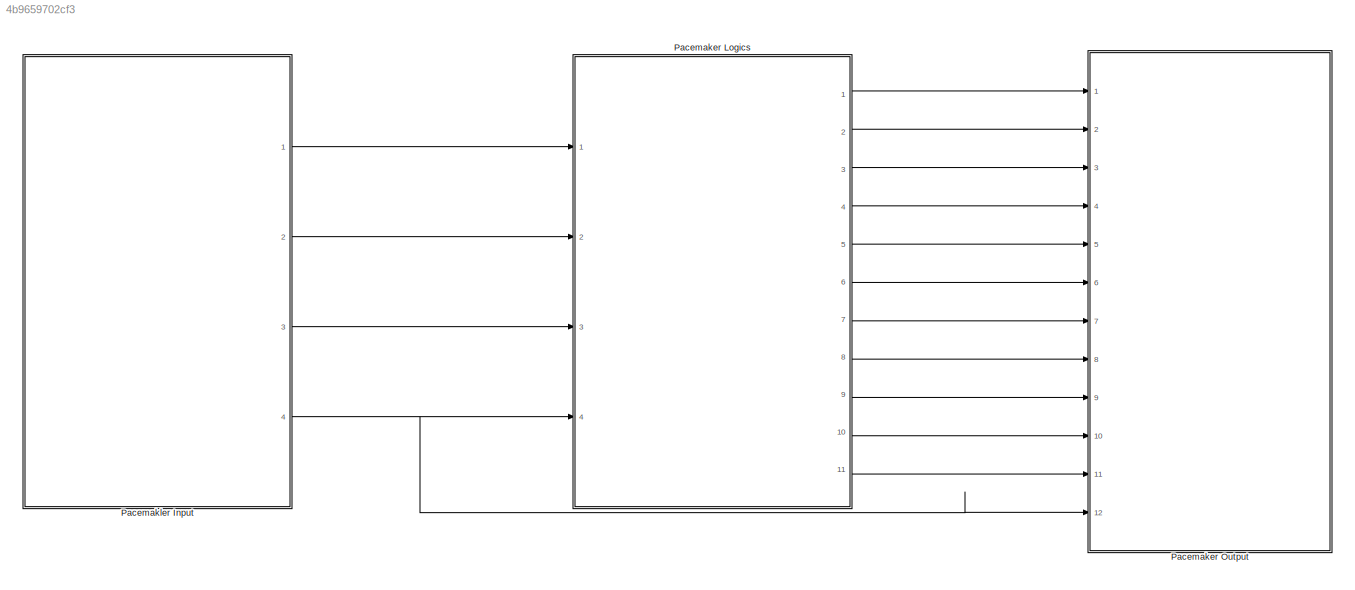
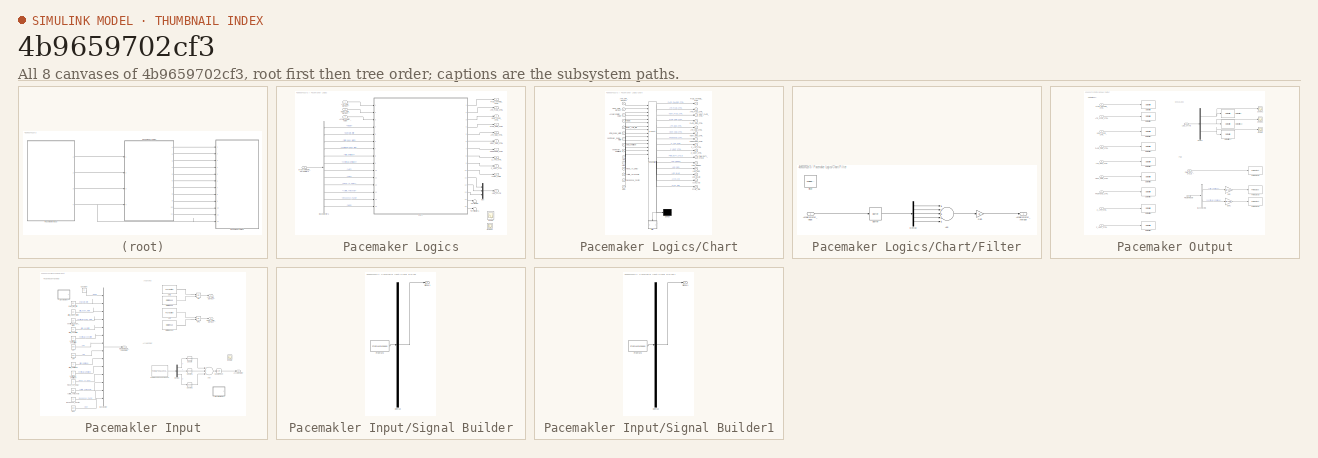
[diagram: thumbnail index - all 8 canvases of the model, root first then tree order]
MODEL slx_4b9659702cf3
KIND model
CONFIG AbsTol = auto
CONFIG EnableMultiTasking = on
CONFIG FixedStep = 1e-3
CONFIG MaxStep = auto
CONFIG MinStep = auto
CONFIG RelTol = 1e-3
CONFIG SampleTimeConstraint = Unconstrained
CONFIG Solver = FixedStepAuto
CONFIG SolverName = FixedStepAuto
CONFIG StartTime = 0.0
CONFIG StopTime = 100
BLOCK [SubSystem] Pacemaker Logics
  Ports = [4, 11]
  RequestExecContextInheritance = off
BLOCK [Outport] Pacemaker Logics/ATRIAL_PWM
  IconDisplay = Port number
  Port = 10
BLOCK [Inport] Pacemaker Logics/ATR_CMR_DETECT
  IconDisplay = Port number
BLOCK [Outport] Pacemaker Logics/ATR_GND_CTRL
  IconDisplay = Port number
  Port = 5
BLOCK [Outport] Pacemaker Logics/ATR_PACE_CTRL
  IconDisplay = Port number
  Port = 2
BLOCK [Inport] Pacemaker Logics/Accelerometer_Value
  IconDisplay = Port number
  Port = 3
BLOCK [BusSelector] Pacemaker Logics/Bus Selector1
  OutputAsBus = off
  OutputSignals = MODE,lower_rate_limit,atrial_pulse_width,ventricular_pulse_width,atrial_amplitude,ventricular_amplitude,ARP,VRP,Fixed_AV_Delay,Activity_Threshold,Response_Factor,MSR
  Ports = [1, 12]
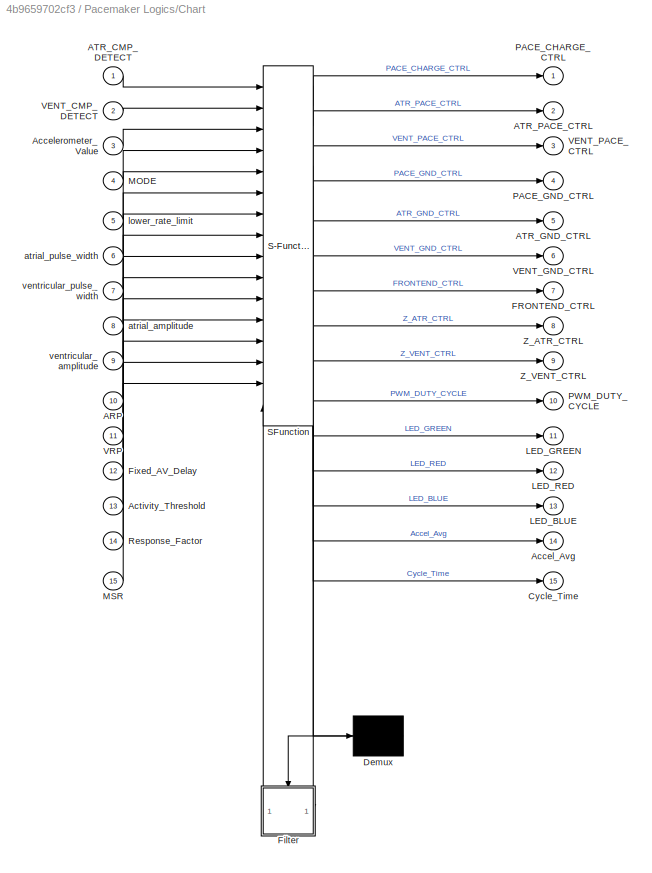
BLOCK [SubSystem] Pacemaker Logics/Chart
  ErrorFcn = Stateflow.Translate.translate
  PermitHierarchicalResolution = ExplicitOnly
  Ports = [15, 15]
  RequestExecContextInheritance = off
  SFBlockType = Chart
  TreatAsAtomicUnit = on
BLOCK [Demux] Pacemaker Logics/Chart/ Demux 
  Outputs = 1
  Ports = [1, 1]
BLOCK [S-Function] Pacemaker Logics/Chart/ SFunction 
  EnableBusSupport = on
  FunctionName = sf_sfun
  PortCounts = [16 17]
  Ports = [16, 17]
  SFcnIsStateOwnerBlock = off
  SFunctionDeploymentMode = off
  Tag = Stateflow S-Function asg1_3k03 3
BLOCK [Inport] Pacemaker Logics/Chart/ARP
  IconDisplay = Port number
  Port = 10
BLOCK [Inport] Pacemaker Logics/Chart/ATR_CMP_DETECT
  IconDisplay = Port number
BLOCK [Outport] Pacemaker Logics/Chart/ATR_GND_CTRL
  IconDisplay = Port number
  Port = 5
BLOCK [Outport] Pacemaker Logics/Chart/ATR_PACE_CTRL
  IconDisplay = Port number
  Port = 2
BLOCK [Outport] Pacemaker Logics/Chart/Accel_Avg
  IconDisplay = Port number
  Port = 14
BLOCK [Inport] Pacemaker Logics/Chart/Accelerometer_Value
  IconDisplay = Port number
  Port = 3
BLOCK [Inport] Pacemaker Logics/Chart/Activity_Threshold
  IconDisplay = Port number
  Port = 13
BLOCK [Outport] Pacemaker Logics/Chart/Cycle_Time
  IconDisplay = Port number
  Port = 15
BLOCK [Outport] Pacemaker Logics/Chart/FRONTEND_CTRL
  IconDisplay = Port number
  Port = 7
BLOCK [SubSystem] Pacemaker Logics/Chart/Filter
  Ports = [1, 1, 0, 1]
  PreDeleteFcn = Stateflow.SLINSF.SimulinkMan.removePreDeleteFcn
  RequestExecContextInheritance = off
  UndoDeleteFcn = Stateflow.SLINSF.SimulinkMan.restorePreDeleteFcn
BLOCK [Outport] Pacemaker Logics/Chart/Filter/Accelerometer_Average
  IconDisplay = Port number
BLOCK [Inport] Pacemaker Logics/Chart/Filter/Accelerometer_Value
  IconDisplay = Port number
  OutDataTypeStr = double
  PortDimensions = 1
  SignalType = real
  VarSizeSig = No
BLOCK [Sum] Pacemaker Logics/Chart/Filter/Add
  InputSameDT = off
  Inputs = +++++
  OutDataTypeStr = Inherit: Inherit via internal rule
  Ports = [5, 1]
  SaturateOnIntegerOverflow = off
BLOCK [Buffer] Pacemaker Logics/Chart/Filter/Buffer
  N = 5
  OutputFrames = off
  V = 4
  ic = 1
BLOCK [Demux] Pacemaker Logics/Chart/Filter/Demux
  DisplayOption = bar
  Outputs = 5
  Ports = [1, 5]
BLOCK [TriggerPort] Pacemaker Logics/Chart/Filter/Filter 
  CopyFcn = Stateflow.SLINSF.SimulinkMan.removeBlockPreDeleteFcn
  Ports = []
  PreDeleteFcn = Stateflow.SLINSF.SimulinkMan.unsafePredeleteFcn
  StatesWhenEnabling = held
  TriggerType = function-call
  VariantControl = (inherit)
BLOCK [Gain] Pacemaker Logics/Chart/Filter/Gain
  Gain = 1/5
  OutDataTypeStr = Inherit: Inherit via internal rule
  ParamDataTypeStr = Inherit: Inherit via internal rule
  SaturateOnIntegerOverflow = off
BLOCK [Inport] Pacemaker Logics/Chart/Fixed_AV_Delay
  IconDisplay = Port number
  Port = 12
BLOCK [Outport] Pacemaker Logics/Chart/LED_BLUE
  IconDisplay = Port number
  Port = 13
BLOCK [Outport] Pacemaker Logics/Chart/LED_GREEN
  IconDisplay = Port number
  Port = 11
BLOCK [Outport] Pacemaker Logics/Chart/LED_RED
  IconDisplay = Port number
  Port = 12
BLOCK [Inport] Pacemaker Logics/Chart/MODE
  IconDisplay = Port number
  Port = 4
BLOCK [Inport] Pacemaker Logics/Chart/MSR
  IconDisplay = Port number
  Port = 15
BLOCK [Outport] Pacemaker Logics/Chart/PACE_CHARGE_CTRL
  IconDisplay = Port number
BLOCK [Outport] Pacemaker Logics/Chart/PACE_GND_CTRL
  IconDisplay = Port number
  Port = 4
BLOCK [Outport] Pacemaker Logics/Chart/PWM_DUTY_CYCLE
  IconDisplay = Port number
  Port = 10
BLOCK [Inport] Pacemaker Logics/Chart/Response_Factor
  IconDisplay = Port number
  Port = 14
BLOCK [Inport] Pacemaker Logics/Chart/VENT_CMP_DETECT
  IconDisplay = Port number
  Port = 2
BLOCK [Outport] Pacemaker Logics/Chart/VENT_GND_CTRL
  IconDisplay = Port number
  Port = 6
BLOCK [Outport] Pacemaker Logics/Chart/VENT_PACE_CTRL
  IconDisplay = Port number
  Port = 3
BLOCK [Inport] Pacemaker Logics/Chart/VRP
  IconDisplay = Port number
  Port = 11
BLOCK [Outport] Pacemaker Logics/Chart/Z_ATR_CTRL
  IconDisplay = Port number
  Port = 8
BLOCK [Outport] Pacemaker Logics/Chart/Z_VENT_CTRL
  IconDisplay = Port number
  Port = 9
BLOCK [Inport] Pacemaker Logics/Chart/atrial_amplitude
  IconDisplay = Port number
  Port = 8
BLOCK [Inport] Pacemaker Logics/Chart/atrial_pulse_width
  IconDisplay = Port number
  Port = 6
BLOCK [Inport] Pacemaker Logics/Chart/lower_rate_limit
  IconDisplay = Port number
  Port = 5
BLOCK [Inport] Pacemaker Logics/Chart/ventricular_amplitude
  IconDisplay = Port number
  Port = 9
BLOCK [Inport] Pacemaker Logics/Chart/ventricular_pulse_width
  IconDisplay = Port number
  Port = 7
BLOCK [Outport] Pacemaker Logics/FRONTEND_CTRL
  IconDisplay = Port number
  Port = 7
BLOCK [Outport] Pacemaker Logics/LED_STATE
  IconDisplay = Port number
  Port = 11
BLOCK [Mux] Pacemaker Logics/Mux
  DisplayOption = bar
  Inputs = 3
  Ports = [3, 1]
BLOCK [Outport] Pacemaker Logics/PACE_CHARGE_CTRL
  IconDisplay = Port number
BLOCK [Outport] Pacemaker Logics/PACE_GND_CTRL
  IconDisplay = Port number
  Port = 4
BLOCK [Scope] Pacemaker Logics/Scope
  Commented = on
  Floating = off
  NumInputPorts = 2
  Ports = [2]
  ScopeSpecificationString = Simulink.scopes.TimeScopeBlockCfg('CurrentConfiguration', extmgr.ConfigurationSet(extmgr.Configuration('Core','General UI',true),extmgr.Configuration('Core','Source UI',true),extmgr.Configuration('Sources','WiredSimulink',true,'DataLoggingVariableName','ScopeData3'),extmgr.Configuration('Visuals','Time Domain',true,'SerializedDisplays',{struct('MinYLimReal','-0.175','MaxYLimReal','1.575','YLabelRe...<+1538ch>
BLOCK [Scope] Pacemaker Logics/Scope1
  Commented = on
  Floating = off
  NumInputPorts = 1
  Ports = [1]
  ScopeSpecificationString = Simulink.scopes.TimeScopeBlockCfg('CurrentConfiguration', extmgr.ConfigurationSet(extmgr.Configuration('Core','General UI',true),extmgr.Configuration('Core','Source UI',true),extmgr.Configuration('Sources','WiredSimulink',true,'DataLoggingVariableName','ScopeData1'),extmgr.Configuration('Visuals','Time Domain',true,'SerializedDisplays',{struct('MinYLimReal','900.00000','MaxYLimReal','1100.00000','...<+1445ch>
BLOCK [Terminator] Pacemaker Logics/Terminator
BLOCK [Terminator] Pacemaker Logics/Terminator1
BLOCK [Inport] Pacemaker Logics/VENT_CMP_DETECT
  IconDisplay = Port number
  Port = 2
BLOCK [Outport] Pacemaker Logics/VENT_GND_CTRL
  IconDisplay = Port number
  Port = 6
BLOCK [Outport] Pacemaker Logics/VENT_PACE_CTRL
  IconDisplay = Port number
  Port = 3
BLOCK [Outport] Pacemaker Logics/Z_ATR_CTRL
  IconDisplay = Port number
  Port = 8
BLOCK [Outport] Pacemaker Logics/Z_VENT_CTRL
  IconDisplay = Port number
  Port = 9
BLOCK [Inport] Pacemaker Logics/programmable_parameters
  IconDisplay = Port number
  Port = 4
BLOCK [SubSystem] Pacemaker Output
  Ports = [12]
  RequestExecContextInheritance = off
BLOCK [Inport] Pacemaker Output/ATR_GND_CTRL
  IconDisplay = Port number
  Port = 5
BLOCK [Inport] Pacemaker Output/ATR_PACE_CTRL
  IconDisplay = Port number
  Port = 2
BLOCK [BusSelector] Pacemaker Output/Bus Selector1
  OutputAsBus = off
  OutputSignals = atrial_amplitude,ventricular_amplitude
  Ports = [1, 2]
BLOCK [Demux] Pacemaker Output/Demux
  DisplayOption = bar
  Outputs = 3
  Ports = [1, 3]
BLOCK [Reference] Pacemaker Output/Digital Write  REF=frdmk64flib/Digital Write
  Ports = [1]
  SourceBlock = frdmk64flib/Digital Write
  SourceProductBaseCode = EC_FRDM_K64F
  SourceProductName = Simulink Coder Support Package for NXP FRDM-K64F Board
  SourceType = freedomk64f.DigitalWrite
BLOCK [Reference] Pacemaker Output/Digital Write1  REF=frdmk64flib/Digital Write
  Ports = [1]
  SourceBlock = frdmk64flib/Digital Write
  SourceProductBaseCode = EC_FRDM_K64F
  SourceProductName = Simulink Coder Support Package for NXP FRDM-K64F Board
  SourceType = freedomk64f.DigitalWrite
BLOCK [Reference] Pacemaker Output/Digital Write10  REF=frdmk64flib/Digital Write
  Ports = [1]
  SourceBlock = frdmk64flib/Digital Write
  SourceProductBaseCode = EC_FRDM_K64F
  SourceProductName = Simulink Coder Support Package for NXP FRDM-K64F Board
  SourceType = freedomk64f.DigitalWrite
BLOCK [Reference] Pacemaker Output/Digital Write11  REF=frdmk64flib/Digital Write
  Ports = [1]
  SourceBlock = frdmk64flib/Digital Write
  SourceProductBaseCode = EC_FRDM_K64F
  SourceProductName = Simulink Coder Support Package for NXP FRDM-K64F Board
  SourceType = freedomk64f.DigitalWrite
BLOCK [Reference] Pacemaker Output/Digital Write2  REF=frdmk64flib/Digital Write
  Ports = [1]
  SourceBlock = frdmk64flib/Digital Write
  SourceProductBaseCode = EC_FRDM_K64F
  SourceProductName = Simulink Coder Support Package for NXP FRDM-K64F Board
  SourceType = freedomk64f.DigitalWrite
BLOCK [Reference] Pacemaker Output/Digital Write3  REF=frdmk64flib/Digital Write
  Ports = [1]
  SourceBlock = frdmk64flib/Digital Write
  SourceProductBaseCode = EC_FRDM_K64F
  SourceProductName = Simulink Coder Support Package for NXP FRDM-K64F Board
  SourceType = freedomk64f.DigitalWrite
BLOCK [Reference] Pacemaker Output/Digital Write4  REF=frdmk64flib/Digital Write
  Ports = [1]
  SourceBlock = frdmk64flib/Digital Write
  SourceProductBaseCode = EC_FRDM_K64F
  SourceProductName = Simulink Coder Support Package for NXP FRDM-K64F Board
  SourceType = freedomk64f.DigitalWrite
BLOCK [Reference] Pacemaker Output/Digital Write5  REF=frdmk64flib/Digital Write
  Ports = [1]
  SourceBlock = frdmk64flib/Digital Write
  SourceProductBaseCode = EC_FRDM_K64F
  SourceProductName = Simulink Coder Support Package for NXP FRDM-K64F Board
  SourceType = freedomk64f.DigitalWrite
BLOCK [Reference] Pacemaker Output/Digital Write6  REF=frdmk64flib/Digital Write
  Ports = [1]
  SourceBlock = frdmk64flib/Digital Write
  SourceProductBaseCode = EC_FRDM_K64F
  SourceProductName = Simulink Coder Support Package for NXP FRDM-K64F Board
  SourceType = freedomk64f.DigitalWrite
BLOCK [Reference] Pacemaker Output/Digital Write7  REF=frdmk64flib/Digital Write
  Ports = [1]
  SourceBlock = frdmk64flib/Digital Write
  SourceProductBaseCode = EC_FRDM_K64F
  SourceProductName = Simulink Coder Support Package for NXP FRDM-K64F Board
  SourceType = freedomk64f.DigitalWrite
BLOCK [Reference] Pacemaker Output/Digital Write8  REF=frdmk64flib/Digital Write
  Ports = [1]
  SourceBlock = frdmk64flib/Digital Write
  SourceProductBaseCode = EC_FRDM_K64F
  SourceProductName = Simulink Coder Support Package for NXP FRDM-K64F Board
  SourceType = freedomk64f.DigitalWrite
BLOCK [Reference] Pacemaker Output/Digital Write9  REF=frdmk64flib/Digital Write
  Ports = [1]
  SourceBlock = frdmk64flib/Digital Write
  SourceProductBaseCode = EC_FRDM_K64F
  SourceProductName = Simulink Coder Support Package for NXP FRDM-K64F Board
  SourceType = freedomk64f.DigitalWrite
BLOCK [Inport] Pacemaker Output/FRONTEND_CTRL
  IconDisplay = Port number
  Port = 7
BLOCK [Gain] Pacemaker Output/Gain
  Gain = 1/5*100
  OutDataTypeStr = Inherit: Inherit via internal rule
  ParamDataTypeStr = Inherit: Inherit via internal rule
  SaturateOnIntegerOverflow = off
BLOCK [Gain] Pacemaker Output/Gain1
  Gain = 1/5*100
  OutDataTypeStr = Inherit: Inherit via internal rule
  ParamDataTypeStr = Inherit: Inherit via internal rule
  SaturateOnIntegerOverflow = off
BLOCK [Inport] Pacemaker Output/LED_STATE
  IconDisplay = Port number
  Port = 11
BLOCK [Inport] Pacemaker Output/PACE_CHARGE_CTRL
  IconDisplay = Port number
BLOCK [Inport] Pacemaker Output/PACE_GND_CTRL
  IconDisplay = Port number
  Port = 4
BLOCK [Reference] Pacemaker Output/PWM Output2  REF=frdmk64flib/PWM Output
  Ports = [1]
  SourceBlock = frdmk64flib/PWM Output
  SourceProductBaseCode = EC_FRDM_K64F
  SourceProductName = Simulink Coder Support Package for NXP FRDM-K64F Board
  SourceType = freedomk64f.PWMOutput
BLOCK [Reference] Pacemaker Output/PWM Output3  REF=frdmk64flib/PWM Output
  Ports = [1]
  SourceBlock = frdmk64flib/PWM Output
  SourceProductBaseCode = EC_FRDM_K64F
  SourceProductName = Simulink Coder Support Package for NXP FRDM-K64F Board
  SourceType = freedomk64f.PWMOutput
BLOCK [Reference] Pacemaker Output/PWM Output4  REF=frdmk64flib/PWM Output
  Ports = [1]
  SourceBlock = frdmk64flib/PWM Output
  SourceProductBaseCode = EC_FRDM_K64F
  SourceProductName = Simulink Coder Support Package for NXP FRDM-K64F Board
  SourceType = freedomk64f.PWMOutput
BLOCK [Inport] Pacemaker Output/PWM_DUTY_CYCLE
  IconDisplay = Port number
  Port = 10
BLOCK [Inport] Pacemaker Output/Programmable 
  IconDisplay = Port number
  Port = 12
BLOCK [Scope] Pacemaker Output/Scope
  Floating = off
  NumInputPorts = 1
  Ports = [1]
  ScopeSpecificationString = Simulink.scopes.TimeScopeBlockCfg('CurrentConfiguration', extmgr.ConfigurationSet(extmgr.Configuration('Core','General UI',true),extmgr.Configuration('Core','Source UI',true),extmgr.Configuration('Sources','WiredSimulink',true,'DataLoggingVariableName','ScopeData1'),extmgr.Configuration('Visuals','Time Domain',true,'SerializedDisplays',{struct('MinYLimReal','-0.125','MaxYLimReal','1.125','YLabelRe...<+1468ch>
BLOCK [Scope] Pacemaker Output/Scope1
  Floating = off
  NumInputPorts = 1
  Ports = [1]
  ScopeSpecificationString = Simulink.scopes.TimeScopeBlockCfg('CurrentConfiguration', extmgr.ConfigurationSet(extmgr.Configuration('Core','General UI',true),extmgr.Configuration('Core','Source UI',true),extmgr.Configuration('Sources','WiredSimulink',true,'DataLoggingVariableName','ScopeData1'),extmgr.Configuration('Visuals','Time Domain',true,'SerializedDisplays',{struct('MinYLimReal','-0.125','MaxYLimReal','1.125','YLabelRe...<+1467ch>
BLOCK [Scope] Pacemaker Output/Scope2
  Floating = off
  NumInputPorts = 1
  Ports = [1]
  ScopeSpecificationString = Simulink.scopes.TimeScopeBlockCfg('CurrentConfiguration', extmgr.ConfigurationSet(extmgr.Configuration('Core','General UI',true),extmgr.Configuration('Core','Source UI',true),extmgr.Configuration('Sources','WiredSimulink',true,'DataLoggingVariableName','ScopeData2'),extmgr.Configuration('Visuals','Time Domain',true,'SerializedDisplays',{struct('MinYLimReal','-0.01167','MaxYLimReal','0.0277','YLabe...<+1811ch>
BLOCK [Inport] Pacemaker Output/VENT_GND_CTRL
  IconDisplay = Port number
  Port = 6
BLOCK [Inport] Pacemaker Output/VENT_PACE_CTRL
  IconDisplay = Port number
  Port = 3
BLOCK [Inport] Pacemaker Output/Z_ATR_CTRL
  IconDisplay = Port number
  Port = 8
BLOCK [Inport] Pacemaker Output/Z_VENT_CTRL
  IconDisplay = Port number
  Port = 9
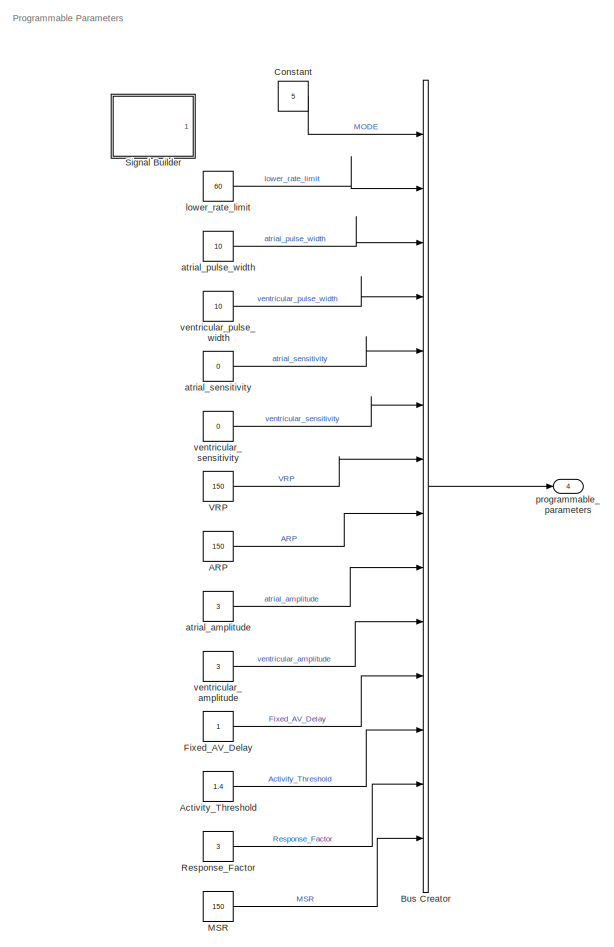
[diagram: Pacemakler Input - part 1/2, left side, full height]
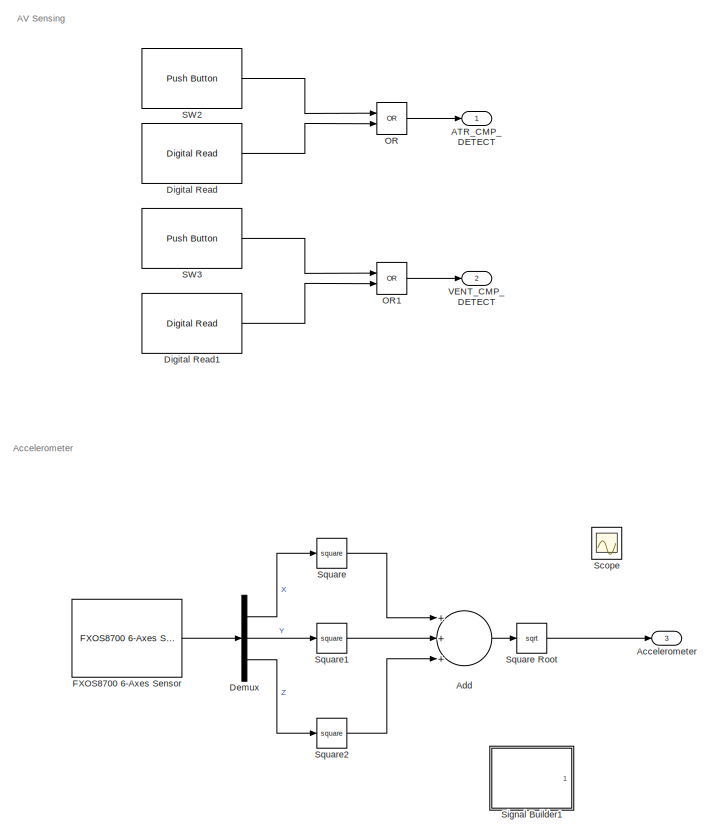
[diagram: Pacemakler Input - part 2/2, right side, full height]
BLOCK [SubSystem] Pacemakler Input
  Ports = [0, 4]
  RequestExecContextInheritance = off
BLOCK [Constant] Pacemakler Input/ARP
  Value = 150
BLOCK [Outport] Pacemakler Input/ATR_CMP_DETECT
  IconDisplay = Port number
BLOCK [Outport] Pacemakler Input/Accelerometer 
  IconDisplay = Port number
  Port = 3
BLOCK [Constant] Pacemakler Input/Activity_Threshold
  Value = 1.4
BLOCK [Sum] Pacemakler Input/Add
  InputSameDT = off
  Inputs = +++
  OutDataTypeStr = Inherit: Inherit via internal rule
  Ports = [3, 1]
  SaturateOnIntegerOverflow = off
BLOCK [BusCreator] Pacemakler Input/Bus Creator
  DisplayOption = bar
  InheritFromInputs = on
  Inputs = 14
  Ports = [14, 1]
BLOCK [Constant] Pacemakler Input/Constant
  Value = 5
BLOCK [Demux] Pacemakler Input/Demux
  DisplayOption = bar
  Outputs = 3
  Ports = [1, 3]
BLOCK [Reference] Pacemakler Input/Digital Read  REF=frdmk64flib/Digital Read
  Ports = [0, 1]
  SourceBlock = frdmk64flib/Digital Read
  SourceProductBaseCode = EC_FRDM_K64F
  SourceProductName = Simulink Coder Support Package for NXP FRDM-K64F Board
  SourceType = freedomk64f.DigitalRead
BLOCK [Reference] Pacemakler Input/Digital Read1  REF=frdmk64flib/Digital Read
  Ports = [0, 1]
  SourceBlock = frdmk64flib/Digital Read
  SourceProductBaseCode = EC_FRDM_K64F
  SourceProductName = Simulink Coder Support Package for NXP FRDM-K64F Board
  SourceType = freedomk64f.DigitalRead
BLOCK [Reference] Pacemakler Input/FXOS8700 6-Axes Sensor  REF=frdmk64flib/FXOS8700 6-Axes Sensor
  Ports = [0, 1]
  SourceBlock = frdmk64flib/FXOS8700 6-Axes Sensor
  SourceProductBaseCode = EC_FRDM_K64F
  SourceProductName = Simulink Coder Support Package for NXP FRDM-K64F Board
  SourceType = freedomk64f.fxos8700
BLOCK [Constant] Pacemakler Input/Fixed_AV_Delay
BLOCK [Constant] Pacemakler Input/MSR 
  Value = 150
BLOCK [Logic] Pacemakler Input/OR
  AllPortsSameDT = off
  IconShape = distinctive
  Operator = OR
  OutDataTypeStr = boolean
  Ports = [2, 1]
BLOCK [Logic] Pacemakler Input/OR1
  AllPortsSameDT = off
  IconShape = distinctive
  Operator = OR
  OutDataTypeStr = boolean
  Ports = [2, 1]
BLOCK [Constant] Pacemakler Input/Response_Factor
  Value = 3
BLOCK [Reference] Pacemakler Input/SW2  REF=frdmk64flib/Push Button
  Ports = [0, 1]
  SourceBlock = frdmk64flib/Push Button
  SourceProductBaseCode = EC_FRDM_K64F
  SourceProductName = Simulink Coder Support Package for NXP FRDM-K64F Board
  SourceType = freedomk64f.PushButton
BLOCK [Reference] Pacemakler Input/SW3  REF=frdmk64flib/Push Button
  Ports = [0, 1]
  SourceBlock = frdmk64flib/Push Button
  SourceProductBaseCode = EC_FRDM_K64F
  SourceProductName = Simulink Coder Support Package for NXP FRDM-K64F Board
  SourceType = freedomk64f.PushButton
BLOCK [Scope] Pacemakler Input/Scope
  Commented = on
  Floating = off
  NumInputPorts = 1
  Ports = [1]
  ScopeSpecificationString = Simulink.scopes.TimeScopeBlockCfg('CurrentConfiguration', extmgr.ConfigurationSet(extmgr.Configuration('Core','General UI',true),extmgr.Configuration('Core','Source UI',true),extmgr.Configuration('Sources','WiredSimulink',true),extmgr.Configuration('Visuals','Time Domain',true,'SerializedDisplays',{struct('MinYLimReal','-0.47168','MaxYLimReal','6.13851','YLabelReal','','MinYLimMag','0.00000','MaxY...<+1429ch>
BLOCK [SubSystem] Pacemakler Input/Signal Builder
  ClipboardFcn = sigbuilder_block('clipboard');
  CloseFcn = sigbuilder_block('close');
  Commented = on
  ContinueFcn = sigbuilder_block('continue');
  CopyFcn = sigbuilder_block('copy');
  DeleteFcn = sigbuilder_block('delete');
  LoadFcn = sigbuilder_block('load');
  MaskHideContents = on
  ModelCloseFcn = sigbuilder_block('modelClose');
  NameChangeFcn = sigbuilder_block('namechange');
  OpenFcn = sigbuilder_block('open',[347.5 209 550.5 400 ]);
  PauseFcn = sigbuilder_block('pause');
  Ports = [0, 1]
  PreSaveFcn = sigbuilder_block('preSave');
  RequestExecContextInheritance = off
  StartFcn = sigbuilder_block('start');
  StopFcn = sigbuilder_block('stop');
  Tag = STV Subsys
BLOCK [Demux] Pacemakler Input/Signal Builder/Demux
  Outputs = 1
  Ports = [1, 1]
  Tag = STV Demux
BLOCK [FromWorkspace] Pacemakler Input/Signal Builder/FromWs
  SampleTime = 0
  Tag = STV FromWs
  VariableName = tuvar
  ZeroCross = on
BLOCK [Outport] Pacemakler Input/Signal Builder/Signal 1
  IconDisplay = Port number
  Tag = STV Outport
BLOCK [SubSystem] Pacemakler Input/Signal Builder1
  ClipboardFcn = sigbuilder_block('clipboard');
  CloseFcn = sigbuilder_block('close');
  Commented = on
  ContinueFcn = sigbuilder_block('continue');
  CopyFcn = sigbuilder_block('copy');
  DeleteFcn = sigbuilder_block('delete');
  LoadFcn = sigbuilder_block('load');
  MaskHideContents = on
  ModelCloseFcn = sigbuilder_block('modelClose');
  NameChangeFcn = sigbuilder_block('namechange');
  OpenFcn = sigbuilder_block('open',[347.5 209 550.5 400 ]);
  PauseFcn = sigbuilder_block('pause');
  Ports = [0, 1]
  PreSaveFcn = sigbuilder_block('preSave');
  RequestExecContextInheritance = off
  StartFcn = sigbuilder_block('start');
  StopFcn = sigbuilder_block('stop');
  Tag = STV Subsys
BLOCK [Demux] Pacemakler Input/Signal Builder1/Demux
  Outputs = 1
  Ports = [1, 1]
  Tag = STV Demux
BLOCK [FromWorkspace] Pacemakler Input/Signal Builder1/FromWs
  SampleTime = 0
  Tag = STV FromWs
  VariableName = tuvar
  ZeroCross = on
BLOCK [Outport] Pacemakler Input/Signal Builder1/Signal 1
  IconDisplay = Port number
  Tag = STV Outport
BLOCK [Math] Pacemakler Input/Square
  Operator = square
  Ports = [1, 1]
BLOCK [Sqrt] Pacemakler Input/Square Root
BLOCK [Math] Pacemakler Input/Square1
  Operator = square
  Ports = [1, 1]
BLOCK [Math] Pacemakler Input/Square2
  Operator = square
  Ports = [1, 1]
BLOCK [Outport] Pacemakler Input/VENT_CMP_DETECT
  IconDisplay = Port number
  Port = 2
BLOCK [Constant] Pacemakler Input/VRP
  Value = 150
BLOCK [Constant] Pacemakler Input/atrial_amplitude
  Value = 3
BLOCK [Constant] Pacemakler Input/atrial_pulse_width
  Value = 10
BLOCK [Constant] Pacemakler Input/atrial_sensitivity
  Value = 0
BLOCK [Constant] Pacemakler Input/lower_rate_limit
  Value = 60
BLOCK [Outport] Pacemakler Input/programmable_parameters
  IconDisplay = Port number
  Port = 4
BLOCK [Constant] Pacemakler Input/ventricular_amplitude
  Value = 3
BLOCK [Constant] Pacemakler Input/ventricular_pulse_width
  Value = 10
BLOCK [Constant] Pacemakler Input/ventricular_sensitivity
  Value = 0
ANNOTATION Pacemaker Output: Debug LEDs
ANNOTATION Pacemaker Output: Digital Write (Pins)
ANNOTATION Pacemaker Output: PWM
ANNOTATION Pacemakler Input: AV Sensing
ANNOTATION Pacemakler Input: Accelerometer
ANNOTATION Pacemakler Input: Programmable Parameters
LINE Pacemaker Logics/ATR_CMR_DETECT:1 -> Pacemaker Logics/Chart:1
LINE Pacemaker Logics/Accelerometer_Value:1 -> Pacemaker Logics/Chart:3
LINE Pacemaker Logics/Bus Selector1:1 -> Pacemaker Logics/Chart:4
LINE Pacemaker Logics/Bus Selector1:10 -> Pacemaker Logics/Chart:13
LINE Pacemaker Logics/Bus Selector1:11 -> Pacemaker Logics/Chart:14
LINE Pacemaker Logics/Bus Selector1:12 -> Pacemaker Logics/Chart:15
LINE Pacemaker Logics/Bus Selector1:2 -> Pacemaker Logics/Chart:5
LINE Pacemaker Logics/Bus Selector1:3 -> Pacemaker Logics/Chart:6
LINE Pacemaker Logics/Bus Selector1:4 -> Pacemaker Logics/Chart:7
LINE Pacemaker Logics/Bus Selector1:5 -> Pacemaker Logics/Chart:8
LINE Pacemaker Logics/Bus Selector1:6 -> Pacemaker Logics/Chart:9
LINE Pacemaker Logics/Bus Selector1:7 -> Pacemaker Logics/Chart:10
LINE Pacemaker Logics/Bus Selector1:8 -> Pacemaker Logics/Chart:11
LINE Pacemaker Logics/Bus Selector1:9 -> Pacemaker Logics/Chart:12
LINE Pacemaker Logics/Chart:1 -> Pacemaker Logics/PACE_CHARGE_CTRL:1
LINE Pacemaker Logics/Chart:10 -> Pacemaker Logics/ATRIAL_PWM:1
LINE Pacemaker Logics/Chart:11 -> Pacemaker Logics/Mux:1
LINE Pacemaker Logics/Chart:12 -> Pacemaker Logics/Mux:2
LINE Pacemaker Logics/Chart:13 -> Pacemaker Logics/Mux:3
LINE Pacemaker Logics/Chart:14 -> Pacemaker Logics/Terminator:1
LINE Pacemaker Logics/Chart:15 -> Pacemaker Logics/Terminator1:1
LINE Pacemaker Logics/Chart:2 -> Pacemaker Logics/ATR_PACE_CTRL:1
LINE Pacemaker Logics/Chart:3 -> Pacemaker Logics/VENT_PACE_CTRL:1
LINE Pacemaker Logics/Chart:4 -> Pacemaker Logics/PACE_GND_CTRL:1
LINE Pacemaker Logics/Chart:5 -> Pacemaker Logics/ATR_GND_CTRL:1
LINE Pacemaker Logics/Chart:6 -> Pacemaker Logics/VENT_GND_CTRL:1
LINE Pacemaker Logics/Chart:7 -> Pacemaker Logics/FRONTEND_CTRL:1
LINE Pacemaker Logics/Chart:8 -> Pacemaker Logics/Z_ATR_CTRL:1
LINE Pacemaker Logics/Chart:9 -> Pacemaker Logics/Z_VENT_CTRL:1
LINE Pacemaker Logics/Mux:1 -> Pacemaker Logics/LED_STATE:1
LINE Pacemaker Logics/VENT_CMP_DETECT:1 -> Pacemaker Logics/Chart:2
LINE Pacemaker Logics/programmable_parameters:1 -> Pacemaker Logics/Bus Selector1:1
LINE Pacemaker Logics:1 -> Pacemaker Output:1
LINE Pacemaker Logics:10 -> Pacemaker Output:10
LINE Pacemaker Logics:11 -> Pacemaker Output:11
LINE Pacemaker Logics:2 -> Pacemaker Output:2
LINE Pacemaker Logics:3 -> Pacemaker Output:3
LINE Pacemaker Logics:4 -> Pacemaker Output:4
LINE Pacemaker Logics:5 -> Pacemaker Output:5
LINE Pacemaker Logics:6 -> Pacemaker Output:6
LINE Pacemaker Logics:7 -> Pacemaker Output:7
LINE Pacemaker Logics:8 -> Pacemaker Output:8
LINE Pacemaker Logics:9 -> Pacemaker Output:9
LINE Pacemaker Output/ATR_GND_CTRL:1 -> Pacemaker Output/Digital Write4:1
LINE Pacemaker Output/ATR_PACE_CTRL:1 -> Pacemaker Output/Digital Write1:1
LINE Pacemaker Output/Bus Selector1:1 -> Pacemaker Output/Gain:1
LINE Pacemaker Output/Bus Selector1:2 -> Pacemaker Output/Gain1:1
NET Pacemaker Output/Demux:1 -> Pacemaker Output/Digital Write7:1, Pacemaker Output/Scope2:1
NET Pacemaker Output/Demux:2 -> Pacemaker Output/Digital Write10:1, Pacemaker Output/Scope1:1
NET Pacemaker Output/Demux:3 -> Pacemaker Output/Digital Write11:1, Pacemaker Output/Scope:1
LINE Pacemaker Output/FRONTEND_CTRL:1 -> Pacemaker Output/Digital Write6:1
LINE Pacemaker Output/Gain1:1 -> Pacemaker Output/PWM Output4:1
LINE Pacemaker Output/Gain:1 -> Pacemaker Output/PWM Output3:1
LINE Pacemaker Output/LED_STATE:1 -> Pacemaker Output/Demux:1
LINE Pacemaker Output/PACE_CHARGE_CTRL:1 -> Pacemaker Output/Digital Write:1
LINE Pacemaker Output/PACE_GND_CTRL:1 -> Pacemaker Output/Digital Write3:1
LINE Pacemaker Output/PWM_DUTY_CYCLE:1 -> Pacemaker Output/PWM Output2:1
LINE Pacemaker Output/Programmable :1 -> Pacemaker Output/Bus Selector1:1
LINE Pacemaker Output/VENT_GND_CTRL:1 -> Pacemaker Output/Digital Write5:1
LINE Pacemaker Output/VENT_PACE_CTRL:1 -> Pacemaker Output/Digital Write2:1
LINE Pacemaker Output/Z_ATR_CTRL:1 -> Pacemaker Output/Digital Write8:1
LINE Pacemaker Output/Z_VENT_CTRL:1 -> Pacemaker Output/Digital Write9:1
LINE Pacemakler Input/ARP:1 -> Pacemakler Input/Bus Creator:8
LINE Pacemakler Input/Activity_Threshold:1 -> Pacemakler Input/Bus Creator:12
LINE Pacemakler Input/Add:1 -> Pacemakler Input/Square Root:1
LINE Pacemakler Input/Bus Creator:1 -> Pacemakler Input/programmable_parameters:1
LINE Pacemakler Input/Constant:1 -> Pacemakler Input/Bus Creator:1
LINE Pacemakler Input/Demux:1 -> Pacemakler Input/Square:1
LINE Pacemakler Input/Demux:2 -> Pacemakler Input/Square1:1
LINE Pacemakler Input/Demux:3 -> Pacemakler Input/Square2:1
LINE Pacemakler Input/Digital Read1:1 -> Pacemakler Input/OR1:2
LINE Pacemakler Input/Digital Read:1 -> Pacemakler Input/OR:2
LINE Pacemakler Input/FXOS8700 6-Axes Sensor:1 -> Pacemakler Input/Demux:1
LINE Pacemakler Input/Fixed_AV_Delay:1 -> Pacemakler Input/Bus Creator:11
LINE Pacemakler Input/MSR :1 -> Pacemakler Input/Bus Creator:14
LINE Pacemakler Input/OR1:1 -> Pacemakler Input/VENT_CMP_DETECT:1
LINE Pacemakler Input/OR:1 -> Pacemakler Input/ATR_CMP_DETECT:1
LINE Pacemakler Input/Response_Factor:1 -> Pacemakler Input/Bus Creator:13
LINE Pacemakler Input/SW2:1 -> Pacemakler Input/OR:1
LINE Pacemakler Input/SW3:1 -> Pacemakler Input/OR1:1
LINE Pacemakler Input/Square Root:1 -> Pacemakler Input/Accelerometer :1
LINE Pacemakler Input/Square1:1 -> Pacemakler Input/Add:2
LINE Pacemakler Input/Square2:1 -> Pacemakler Input/Add:3
LINE Pacemakler Input/Square:1 -> Pacemakler Input/Add:1
LINE Pacemakler Input/VRP:1 -> Pacemakler Input/Bus Creator:7
LINE Pacemakler Input/atrial_amplitude:1 -> Pacemakler Input/Bus Creator:9
LINE Pacemakler Input/atrial_pulse_width:1 -> Pacemakler Input/Bus Creator:3
LINE Pacemakler Input/atrial_sensitivity:1 -> Pacemakler Input/Bus Creator:5
LINE Pacemakler Input/lower_rate_limit:1 -> Pacemakler Input/Bus Creator:2
LINE Pacemakler Input/ventricular_amplitude:1 -> Pacemakler Input/Bus Creator:10
LINE Pacemakler Input/ventricular_pulse_width:1 -> Pacemakler Input/Bus Creator:4
LINE Pacemakler Input/ventricular_sensitivity:1 -> Pacemakler Input/Bus Creator:6
LINE Pacemakler Input:1 -> Pacemaker Logics:1
LINE Pacemakler Input:2 -> Pacemaker Logics:2
LINE Pacemakler Input:3 -> Pacemaker Logics:3
NET Pacemakler Input:4 -> Pacemaker Logics:4, Pacemaker Output:12
note: NET lines group one-source signal fan-out (src -> all destinations, sorted); 1:1 wires keep LINE
CHART Pacemaker Logics/Chart states=88 transitions=83
  STATE_LABEL 'VOO_MODE\n'
  STATE_LABEL 'Charge up C22 and discharge C21 to ground'
  STATE_LABEL 'Discharge C22 to C21 which charge up C21'
  STATE_LABEL 'VOO_CHARGE\nentry:\nPACE_CHARGE_CTRL = true;\nVENT_PACE_CTRL = false;\nVENT_GND_CTRL = true;\nPACE_GND_CTRL = true;\nZ_ATR_CTRL = false;\nZ_VENT_CTRL = false;\n%Cycle_Time = Cycle_Min;\n'
  STATE_LABEL 'VOO_PACE\nentry:\nPACE_CHARGE_CTRL = false;\nVENT_PACE_CTRL = true;\nVENT_GND_CTRL = false;\nPACE_GND_CTRL = true;\nZ_ATR_CTRL = false;\nZ_VENT_CTRL = false;\nPWM_DUTY_CYCLE = (ventricular_amplitude/5)*100;'
  STATE_LABEL 'after((60/lower_rate_limit)*1000 - ventricular_pulse_width,msec)'
  STATE_LABEL '[MODE == 0]'
  STATE_LABEL 'after(ventricular_pulse_width,msec)'
  STATE_LABEL 'Charge up C22 and discharge C21 to ground'
  STATE_LABEL 'Discharge C22 to C21 which charge up C21'
  STATE_LABEL 'VOO_CHARGE\nentry:\nPACE_CHARGE_CTRL = true;\nVENT_PACE_CTRL = false;\nVENT_GND_CTRL = true;\nPACE_GND_CTRL = true;\nZ_ATR_CTRL = false;\nZ_VENT_CTRL = false;\n%Cycle_Time = Cycle_Min;\n'
  STATE_LABEL 'VOO_PACE\nentry:\nPACE_CHARGE_CTRL = false;\nVENT_PACE_CTRL = true;\nVENT_GND_CTRL = false;\nPACE_GND_CTRL = true;\nZ_ATR_CTRL = false;\nZ_VENT_CTRL = false;\nPWM_DUTY_CYCLE = (ventricular_amplitude/5)*100;'
  STATE_LABEL 'VOOR_MODE\n'
  STATE_LABEL 'Charge up C22 and discharge C21 to ground'
  STATE_LABEL 'Discharge C22 to C21 which charge up C21'
  STATE_LABEL 'VOO_PACE\nentry:\nPACE_CHARGE_CTRL = false;\nVENT_PACE_CTRL = true;\nVENT_GND_CTRL = false;\nPACE_GND_CTRL = true;\nZ_ATR_CTRL = false;\nZ_VENT_CTRL = false;\nPWM_DUTY_CYCLE = (ventricular_amplitude/5)*100;\nLED_GREEN = 1;'
  STATE_LABEL 'VOO_CHARGE\nentry:\nPACE_CHARGE_CTRL = true;\nVENT_PACE_CTRL = false;\nVENT_GND_CTRL = true;\nPACE_GND_CTRL = true;\nZ_ATR_CTRL = false;\nZ_VENT_CTRL = false;\n'
  STATE_LABEL 'Filter\nentry:\nLED_GREEN = 0;\nAccel_Avg = Filter(Accelerometer_Value);\n'
  STATE_LABEL 'Rate_Adaptive\nentry:\nCycle_Time = rateConversion(Cycle_Min, Cycle_Max, Response_Factor, Activity_Threshold, Accel_Avg);'
  STATE_LABEL '[MODE == 5]'
  STATE_LABEL 'after(Cycle_Time - ventricular_pulse_width,msec)'
  STATE_LABEL 'after(ventricular_pulse_width,msec)'
  STATE_LABEL 'Charge up C22 and discharge C21 to ground'
  STATE_LABEL 'Discharge C22 to C21 which charge up C21'
  STATE_LABEL 'VOO_PACE\nentry:\nPACE_CHARGE_CTRL = false;\nVENT_PACE_CTRL = true;\nVENT_GND_CTRL = false;\nPACE_GND_CTRL = true;\nZ_ATR_CTRL = false;\nZ_VENT_CTRL = false;\nPWM_DUTY_CYCLE = (ventricular_amplitude/5)*100;\nLED_GREEN = 1;'
  STATE_LABEL 'VOO_CHARGE\nentry:\nPACE_CHARGE_CTRL = true;\nVENT_PACE_CTRL = false;\nVENT_GND_CTRL = true;\nPACE_GND_CTRL = true;\nZ_ATR_CTRL = false;\nZ_VENT_CTRL = false;\n'
  STATE_LABEL 'Filter\nentry:\nLED_GREEN = 0;\nAccel_Avg = Filter(Accelerometer_Value);\n'
  STATE_LABEL 'Rate_Adaptive\nentry:\nCycle_Time = rateConversion(Cycle_Min, Cycle_Max, Response_Factor, Activity_Threshold, Accel_Avg);'
  STATE_LABEL 'Accelerometer_Average = Filter(Accelerometer_Value)'
  STATE_LABEL 'Starting state, open all the switchs for safety'
  STATE_LABEL 'VOO Mode'
  STATE_LABEL 'Cycle = rateConversion(Cycle_Low, Cycle_High, RF, Atv_Threshold, Acc_Avg)'
  STATE_LABEL 'SCRIPT:\nfunction Cycle = rateConversion(Cycle_Low, Cycle_High, RF, Atv_Threshold, Acc_Avg)\n    \n    if Acc_Avg < Atv_Threshold\n        Cycle = Cycle_High;\n        return;\n    end    \n   \n    Delta_Y = Cycle_High - Cycle_Low;\n    RF_FACTOR = (RF - 1)/(16 - 1);\n    Max_Activity_Offset = 4;\n    Min_Activity_Offset = 1;\n    Delta_X = Min_Activity_Offset + (Max_Activity_Offset - Min_Activity_Offset)*RF...<+212ch>'
  STATE_LABEL 'AOO_MODE'
  STATE_LABEL 'Charge up C22 and discharge C21 to ground'
  STATE_LABEL 'Discharge C22 to C21 which charge up C21'
  STATE_LABEL 'AOO_CHARGE\nentry:\nPACE_CHARGE_CTRL = true;\n%charge C22\nATR_PACE_CTRL = false;\nATR_GND_CTRL = true;\nPACE_GND_CTRL = true;\n%discharge C21\nZ_ATR_CTRL = false;\nZ_VENT_CTRL = false;\n'
  STATE_LABEL 'AOO_PACE\nentry:\nPACE_CHARGE_CTRL = false;\nPACE_GND_CTRL = true; %charge C21\nATR_PACE_CTRL = true; %discharge C22\nATR_GND_CTRL = false;\nZ_ATR_CTRL = false;\nZ_VENT_CTRL = false;\nPWM_DUTY_CYCLE = (atrial_amplitude/5)*100;\n%set PWM duty cycle based on input amplitude'
  STATE_LABEL 'Lower rate limit is converted to period of cycle'
  STATE_LABEL 'Pace for the period specified by pulse width'
